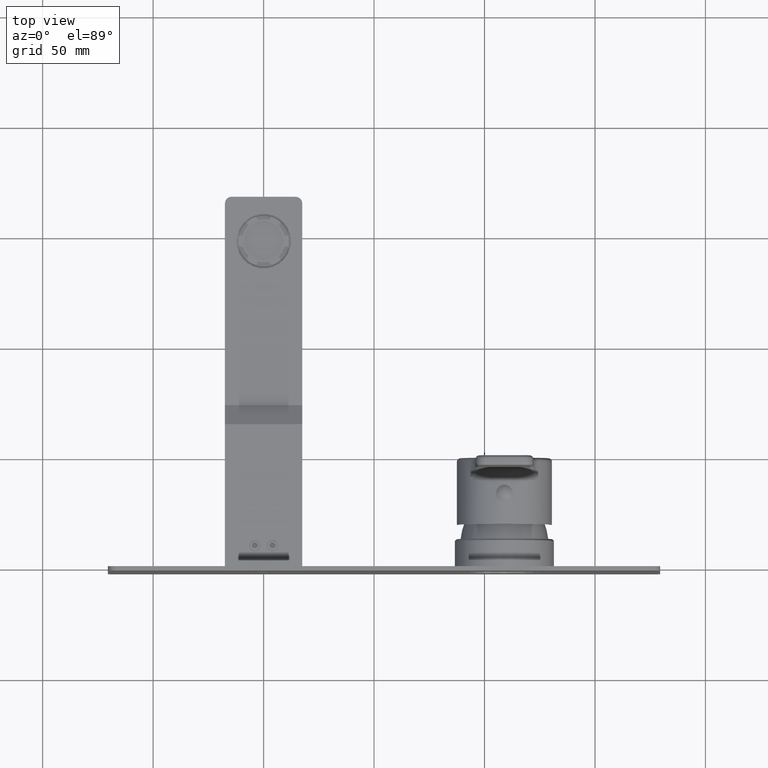
[diagram: clean part render]
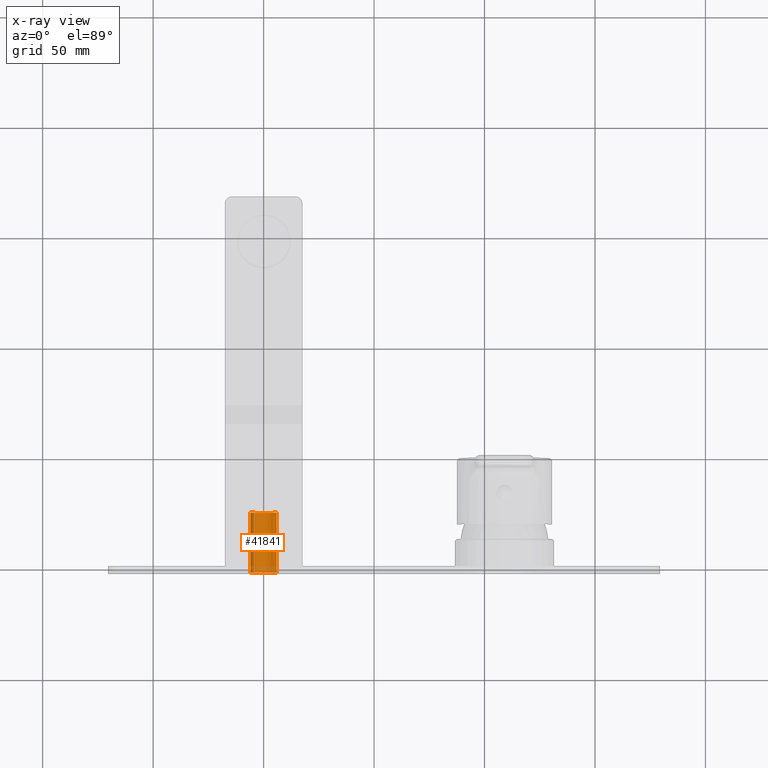
[diagram: x-ray — body ghosted, one internal face saturated and labeled with its STEP entity id]
A machine part, top view, then the same camera in x-ray: the body is ghosted and one INTERNAL B-rep face — a face not visible from any outside direction — is saturated and labeled: STEP entity #41841.
In plain terms, the highlighted cylindrical surface (edge-blend (fillet) strip) has radius 5.9 mm, axis along (0, -1, 0).
Its self-contained STEP definition (entity closure, byte-faithful):
#41302=CARTESIAN_POINT('',(0.E0,7.5E1,0.E0));
#41303=DIRECTION('',(0.E0,1.E0,0.E0));
#41304=DIRECTION('',(7.190916418846E-1,0.E0,6.949152542373E-1));
#41305=AXIS2_PLACEMENT_3D('',#41302,#41303,#41304);
#41307=DIRECTION('',(0.E0,-1.E0,0.E0));
#41308=VECTOR('',#41307,2.7E1);
#41309=CARTESIAN_POINT('',(-4.242640687119E0,7.5E1,4.1E0));
#41310=LINE('',#41309,#41308);
#41311=CARTESIAN_POINT('',(0.E0,4.8E1,0.E0));
#41312=DIRECTION('',(0.E0,-1.E0,0.E0));
#41313=DIRECTION('',(-7.190916418846E-1,0.E0,6.949152542373E-1));
#41314=AXIS2_PLACEMENT_3D('',#41311,#41312,#41313);
#41316=DIRECTION('',(0.E0,-1.E0,0.E0));
#41317=VECTOR('',#41316,2.7E1);
#41318=CARTESIAN_POINT('',(4.242640687119E0,7.5E1,4.1E0));
#41319=LINE('',#41318,#41317);
#41325=CARTESIAN_POINT('',(-4.242640687119E0,7.5E1,4.1E0));
#41327=CARTESIAN_POINT('',(4.242640687119E0,7.5E1,4.1E0));
#41618=VERTEX_POINT('',#41327);
#41619=VERTEX_POINT('',#41325);
#41626=CARTESIAN_POINT('',(-4.242640687119E0,4.8E1,4.1E0));
#41627=CARTESIAN_POINT('',(4.242640687119E0,4.8E1,4.1E0));
#41628=VERTEX_POINT('',#41626);
#41629=VERTEX_POINT('',#41627);
#41827=CARTESIAN_POINT('',(0.E0,1.13E2,0.E0));
#41828=DIRECTION('',(0.E0,-1.E0,0.E0));
#41829=DIRECTION('',(0.E0,0.E0,1.E0));
#41830=AXIS2_PLACEMENT_3D('',#41827,#41828,#41829);
#41831=CYLINDRICAL_SURFACE('',#41830,5.9E0);
#41833=ORIENTED_EDGE('',*,*,#41832,.T.);
#41835=ORIENTED_EDGE('',*,*,#41834,.T.);
#41836=ORIENTED_EDGE('',*,*,#41808,.T.);
#41838=ORIENTED_EDGE('',*,*,#41837,.F.);
#41839=EDGE_LOOP('',(#41833,#41835,#41836,#41838));
#41840=FACE_OUTER_BOUND('',#41839,.F.);
#41841=ADVANCED_FACE('',(#41840),#41831,.T.);
#41306=CIRCLE('',#41305,5.9E0);
#41315=CIRCLE('',#41314,5.9E0);
#41808=EDGE_CURVE('',#41628,#41629,#41315,.T.);
#41832=EDGE_CURVE('',#41618,#41619,#41306,.T.);
#41834=EDGE_CURVE('',#41619,#41628,#41310,.T.);
#41837=EDGE_CURVE('',#41618,#41629,#41319,.T.);